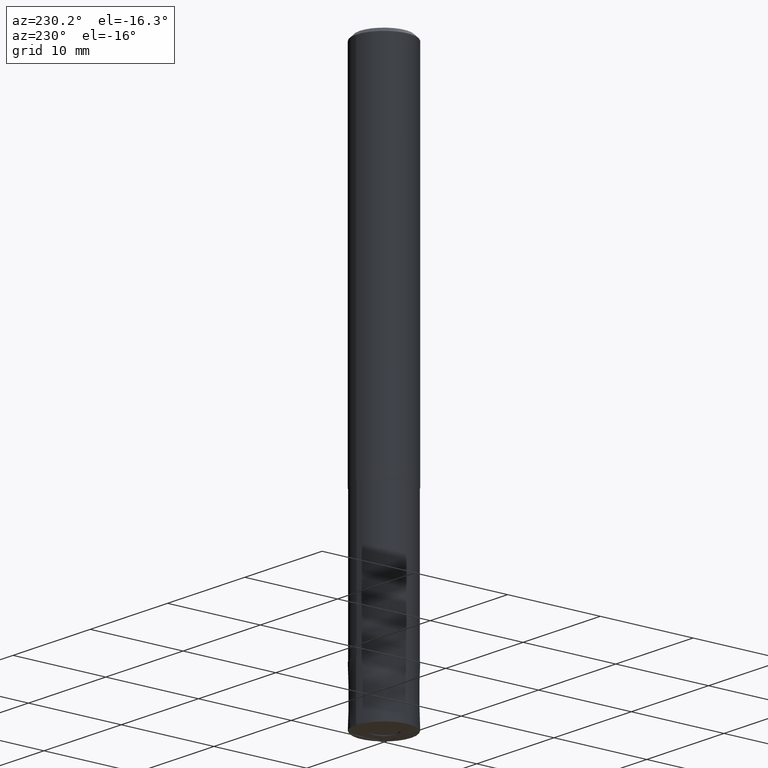
[diagram: clean part render]
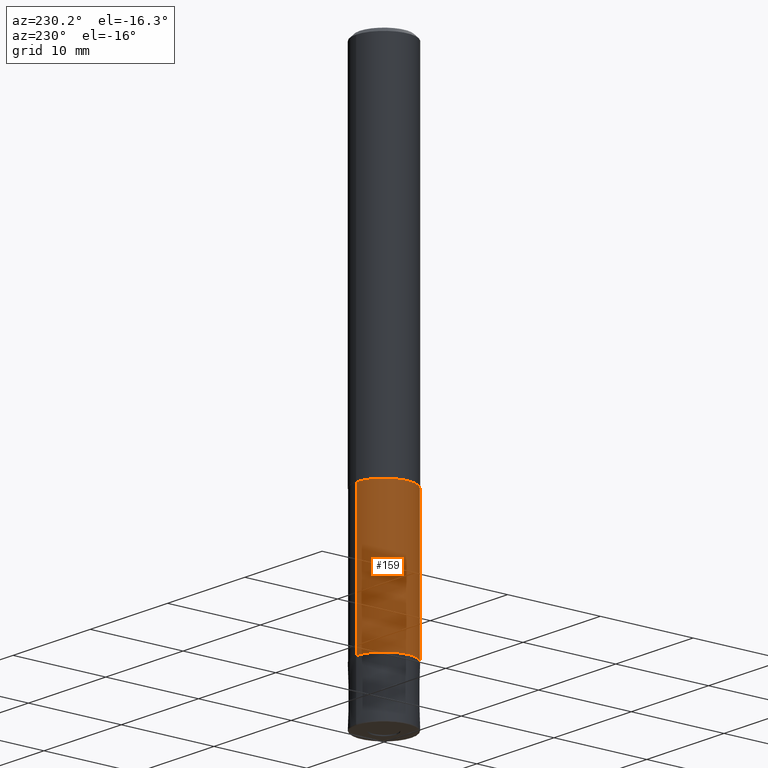
[diagram: same view with one face highlighted and labeled with its STEP entity id]
A machine part, auxiliary view. The second image highlights one B-rep face of the part: STEP entity #159.
In plain terms, the highlighted cylindrical surface (edge-blend (fillet) strip) has radius 2.975 mm, axis along (-0, -0, 1).
Its self-contained STEP definition (entity closure, byte-faithful):
#133=EDGE_CURVE('',#157,#217,#322,.T.);
#149=EDGE_CURVE('',#169,#157,#340,.T.);
#157=VERTEX_POINT('',#350);
#159=ADVANCED_FACE('',(#352),#353,.T.);
#169=VERTEX_POINT('',#364);
#199=EDGE_CURVE('',#217,#221,#399,.T.);
#217=VERTEX_POINT('',#417);
#221=VERTEX_POINT('',#422);
#249=EDGE_CURVE('',#169,#221,#452,.T.);
#322=CIRCLE('',#531,2.97495);
#340=LINE('',#552,#553);
#350=CARTESIAN_POINT('',(3.64314267230388E-016,-2.97495,-39.0));
#352=FACE_OUTER_BOUND('',#566,.T.);
#353=CYLINDRICAL_SURFACE('',#567,2.97495);
#364=CARTESIAN_POINT('',(3.64314267230388E-016,-2.97495,-54.0));
#399=LINE('',#623,#624);
#417=CARTESIAN_POINT('',(0.0,2.97495,-39.0));
#422=CARTESIAN_POINT('',(0.0,2.97495,-54.0));
#452=CIRCLE('',#699,2.97495);
#531=AXIS2_PLACEMENT_3D('',#773,#774,#775);
#552=CARTESIAN_POINT('',(3.64314267230388E-016,-2.97495,-46.5));
#553=VECTOR('',#797,1.0);
#566=EDGE_LOOP('',(#810,#811,#812,#813));
#567=AXIS2_PLACEMENT_3D('',#814,#815,#816);
#623=CARTESIAN_POINT('',(-3.64314267230388E-016,2.97495,-46.5));
#624=VECTOR('',#876,1.0);
#699=AXIS2_PLACEMENT_3D('',#932,#933,#934);
#773=CARTESIAN_POINT('',(0.0,0.0,-39.0));
#774=DIRECTION('',(0.0,0.0,-1.0));
#775=DIRECTION('',(0.0,1.0,0.0));
#797=DIRECTION('',(-0.0,-0.0,1.0));
#810=ORIENTED_EDGE('',*,*,#199,.T.);
#811=ORIENTED_EDGE('',*,*,#249,.F.);
#812=ORIENTED_EDGE('',*,*,#149,.T.);
#813=ORIENTED_EDGE('',*,*,#133,.T.);
#814=CARTESIAN_POINT('',(0.0,0.0,-46.5));
#815=DIRECTION('',(-0.0,-0.0,1.0));
#816=DIRECTION('',(0.0,1.0,0.0));
#876=DIRECTION('',(0.0,0.0,-1.0));
#932=CARTESIAN_POINT('',(0.0,0.0,-54.0));
#933=DIRECTION('',(0.0,0.0,-1.0));
#934=DIRECTION('',(0.0,1.0,0.0));